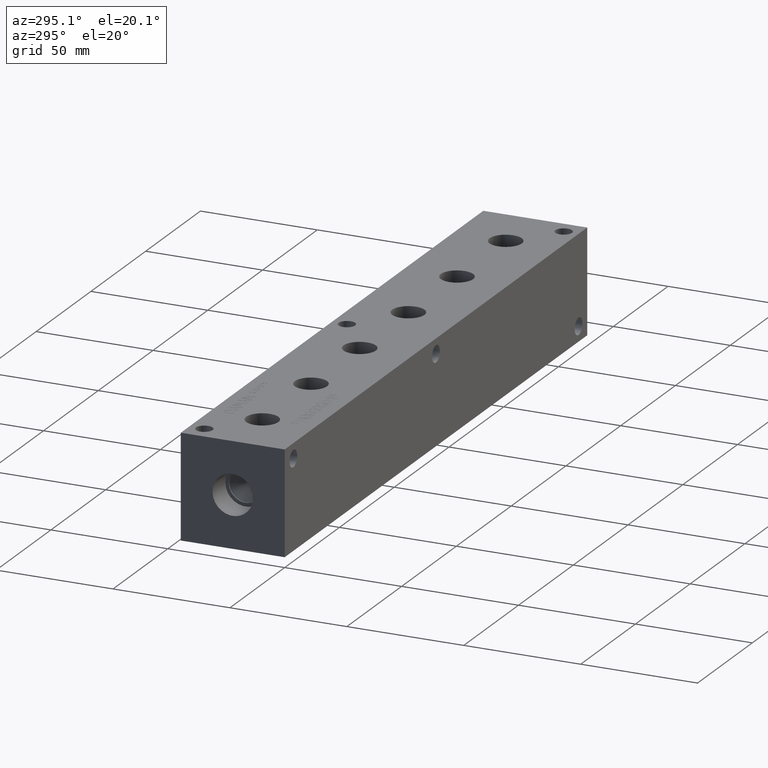
[diagram: clean part render]
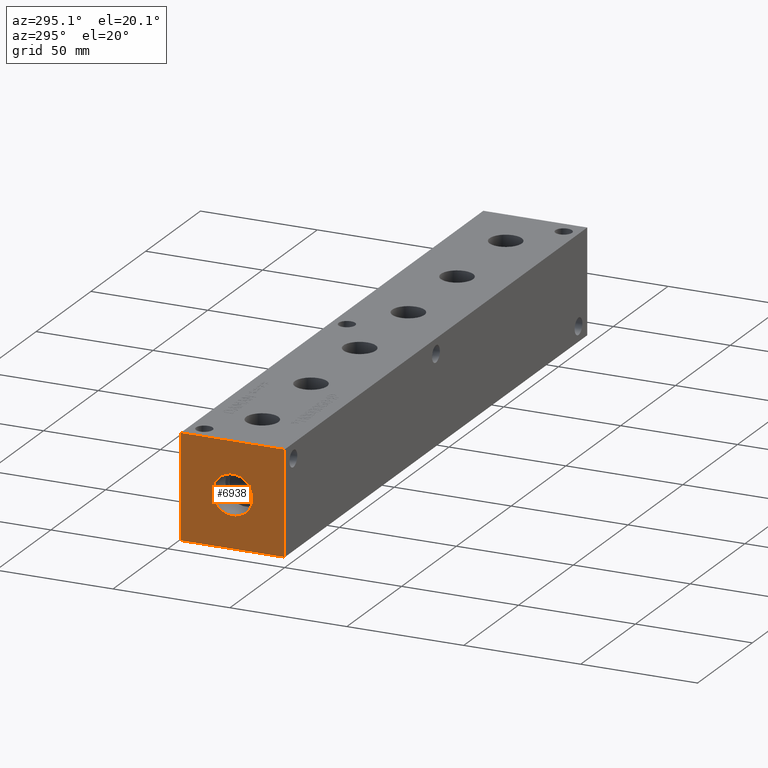
[diagram: same view with one face highlighted and labeled with its STEP entity id]
A machine part, auxiliary view. The second image highlights one B-rep face of the part: STEP entity #6938.
In plain terms, the highlighted planar face has unit normal (-1, 0, 0).
Its self-contained STEP definition (entity closure, byte-faithful):
#134=CIRCLE('',#7292,8.6487);
#135=CIRCLE('',#7293,8.6487);
#183=FACE_BOUND('',#1161,.T.);
#409=PLANE('',#7295);
#761=FACE_OUTER_BOUND('',#1160,.T.);
#1160=EDGE_LOOP('',(#6166,#6167,#6168,#6169));
#1161=EDGE_LOOP('',(#6170,#6171));
#1429=LINE('',#10659,#2103);
#1843=LINE('',#11826,#2517);
#1844=LINE('',#11827,#2518);
#1845=LINE('',#11828,#2519);
#2103=VECTOR('',#7685,10.);
#2517=VECTOR('',#8645,10.);
#2518=VECTOR('',#8646,10.);
#2519=VECTOR('',#8647,10.);
#2997=VERTEX_POINT('',#10652);
#3000=VERTEX_POINT('',#10657);
#3349=VERTEX_POINT('',#11816);
#3350=VERTEX_POINT('',#11817);
#3351=VERTEX_POINT('',#11824);
#3352=VERTEX_POINT('',#11825);
#3781=EDGE_CURVE('',#3000,#2997,#1429,.T.);
#4293=EDGE_CURVE('',#3349,#3350,#134,.T.);
#4294=EDGE_CURVE('',#3350,#3349,#135,.T.);
#4297=EDGE_CURVE('',#3351,#3352,#1843,.T.);
#4298=EDGE_CURVE('',#3352,#2997,#1844,.T.);
#4299=EDGE_CURVE('',#3351,#3000,#1845,.T.);
#6166=ORIENTED_EDGE('',*,*,#4297,.T.);
#6167=ORIENTED_EDGE('',*,*,#4298,.T.);
#6168=ORIENTED_EDGE('',*,*,#3781,.F.);
#6169=ORIENTED_EDGE('',*,*,#4299,.F.);
#6170=ORIENTED_EDGE('',*,*,#4293,.T.);
#6171=ORIENTED_EDGE('',*,*,#4294,.T.);
#6938=ADVANCED_FACE('',(#761,#183),#409,.T.);
#7292=AXIS2_PLACEMENT_3D('',#11818,#8635,#8636);
#7293=AXIS2_PLACEMENT_3D('',#11819,#8637,#8638);
#7295=AXIS2_PLACEMENT_3D('',#11823,#8643,#8644);
#7685=DIRECTION('',(0.,-1.,0.));
#8635=DIRECTION('center_axis',(1.,0.,0.));
#8636=DIRECTION('ref_axis',(0.,1.,0.));
#8637=DIRECTION('center_axis',(1.,0.,0.));
#8638=DIRECTION('ref_axis',(0.,1.,0.));
#8643=DIRECTION('center_axis',(-1.,0.,0.));
#8644=DIRECTION('ref_axis',(0.,-1.,0.));
#8645=DIRECTION('',(0.,-1.,0.));
#8646=DIRECTION('',(0.,0.,1.));
#8647=DIRECTION('',(0.,0.,1.));
#10652=CARTESIAN_POINT('',(0.,0.,44.45));
#10657=CARTESIAN_POINT('',(0.,44.45,44.45));
#10659=CARTESIAN_POINT('',(0.,44.45,44.45));
#11816=CARTESIAN_POINT('',(0.,30.8737,22.225));
#11817=CARTESIAN_POINT('',(0.,13.5763,22.225));
#11818=CARTESIAN_POINT('Origin',(0.,22.225,22.225));
#11819=CARTESIAN_POINT('Origin',(0.,22.225,22.225));
#11823=CARTESIAN_POINT('Origin',(0.,44.45,0.));
#11824=CARTESIAN_POINT('',(0.,44.45,0.));
#11825=CARTESIAN_POINT('',(0.,0.,0.));
#11826=CARTESIAN_POINT('',(0.,44.45,0.));
#11827=CARTESIAN_POINT('',(0.,0.,0.));
#11828=CARTESIAN_POINT('',(0.,44.45,0.));